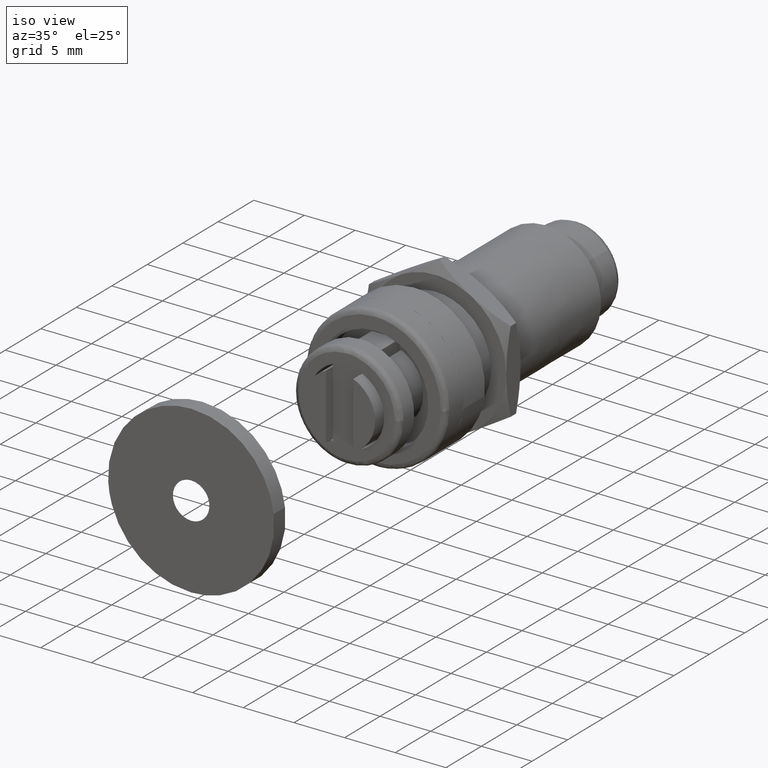
[diagram: clean part render]
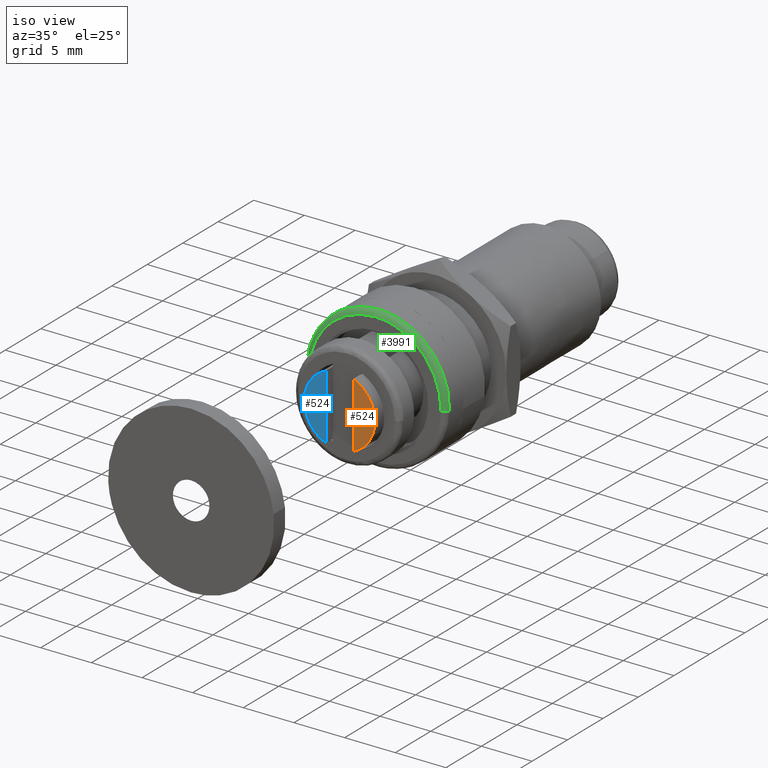
[diagram: same view with three faces highlighted in distinct colors, each labeled with its STEP entity id]
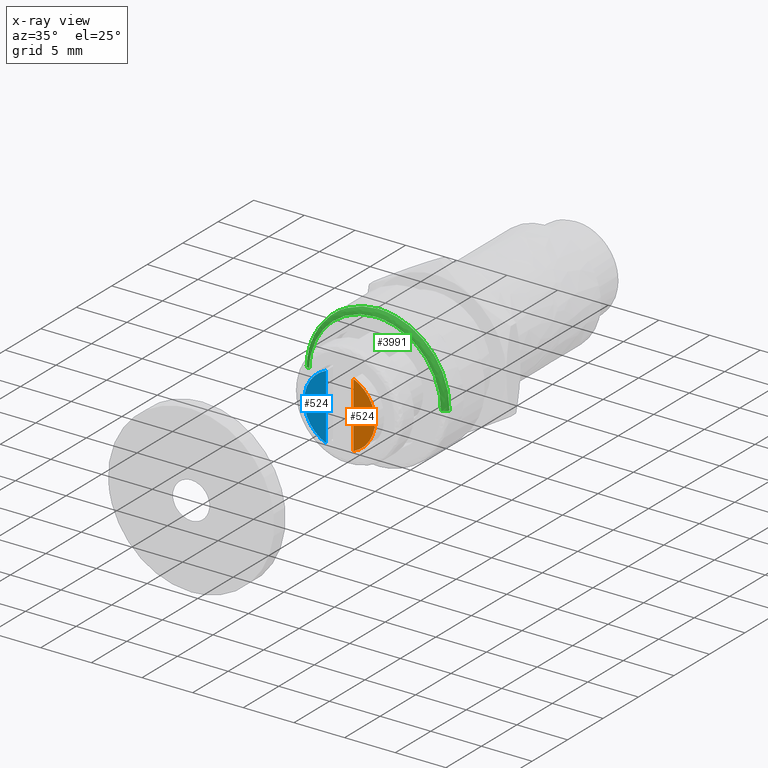
[diagram: x-ray of the same camera — body ghosted, the three highlighted faces saturated]
A machine part, iso view with three faces highlighted in distinct colors.
The next image is the same camera in x-ray (body ghosted, the three faces saturated) — at least one of them is partly hidden behind the body in this view.
Their STEP definitions:

[orange] entity #524 — the highlighted face is a freeform B-spline surface patch.
#493=CARTESIAN_POINT('',(-3.607392352907653,-5.0,3.551756323650161));
#494=CARTESIAN_POINT('',(-1.242610450791008,-5.0,3.551756323650161));
#495=CARTESIAN_POINT('',(-3.607392352907653,-5.0,-3.551756381392092));
#496=CARTESIAN_POINT('',(-1.242610450791008,-5.0,-3.551756381392092));
#497=B_SPLINE_SURFACE_WITH_KNOTS('',1,1,((#493,#495),(#494,#496)),.UNSPECIFIED.,.F.,.F.,.U.,(2,2),(2,2),(0.0,2.364781902116645),(0.0,7.103512705042252),.UNSPECIFIED.);
#498=CARTESIAN_POINT('',(-1.350002707586292,-5.0,3.229162846545475));
#499=VERTEX_POINT('',#498);
#500=CARTESIAN_POINT('',(-1.350002707586292,-5.0,-3.229162846545475));
#501=VERTEX_POINT('',#500);
#502=CARTESIAN_POINT('',(-1.350002707586293,-5.0,3.229162846545476));
#503=CARTESIAN_POINT('',(-3.500000000000000,-5.0,2.330322402754674));
#504=CARTESIAN_POINT('',(-3.500000000000000,-5.0,0.0));
#505=CARTESIAN_POINT('',(-3.500000000000001,-5.0,-2.330322402754674));
#506=CARTESIAN_POINT('',(-1.350002707586292,-5.0,-3.229162846545476));
#514=(BOUNDED_CURVE()B_SPLINE_CURVE(2,(#502,#503,#504,#505,#506),.UNSPECIFIED.,.F.,.U.)B_SPLINE_CURVE_WITH_KNOTS((3,2,3),(0.0,0.500000000000000,1.0),.UNSPECIFIED.)CURVE()GEOMETRIC_REPRESENTATION_ITEM()RATIONAL_B_SPLINE_CURVE((1.0,0.832380639884893,1.0,0.832380639884893,1.0))REPRESENTATION_ITEM(''));
#515=EDGE_CURVE('',#499,#501,#514,.T.);
#516=ORIENTED_EDGE('',*,*,#515,.T.);
#517=CARTESIAN_POINT('',(-1.350002707586292,-5.0,-3.229162846545475));
#518=CARTESIAN_POINT('',(-1.350002707586292,-5.0,3.229162846545475));
#519=QUASI_UNIFORM_CURVE('',1,(#517,#518),.UNSPECIFIED.,.F.,.U.);
#520=EDGE_CURVE('',#501,#499,#519,.T.);
#521=ORIENTED_EDGE('',*,*,#520,.T.);
#522=EDGE_LOOP('',(#516,#521));
#523=FACE_OUTER_BOUND('',#522,.T.);
#524=ADVANCED_FACE('',(#523),#497,.F.);

[blue] entity #524 — the highlighted face is a freeform B-spline surface patch.
#493=CARTESIAN_POINT('',(-3.607392352907653,-5.0,3.551756323650161));
#494=CARTESIAN_POINT('',(-1.242610450791008,-5.0,3.551756323650161));
#495=CARTESIAN_POINT('',(-3.607392352907653,-5.0,-3.551756381392092));
#496=CARTESIAN_POINT('',(-1.242610450791008,-5.0,-3.551756381392092));
#497=B_SPLINE_SURFACE_WITH_KNOTS('',1,1,((#493,#495),(#494,#496)),.UNSPECIFIED.,.F.,.F.,.U.,(2,2),(2,2),(0.0,2.364781902116645),(0.0,7.103512705042252),.UNSPECIFIED.);
#498=CARTESIAN_POINT('',(-1.350002707586292,-5.0,3.229162846545475));
#499=VERTEX_POINT('',#498);
#500=CARTESIAN_POINT('',(-1.350002707586292,-5.0,-3.229162846545475));
#501=VERTEX_POINT('',#500);
#502=CARTESIAN_POINT('',(-1.350002707586293,-5.0,3.229162846545476));
#503=CARTESIAN_POINT('',(-3.500000000000000,-5.0,2.330322402754674));
#504=CARTESIAN_POINT('',(-3.500000000000000,-5.0,0.0));
#505=CARTESIAN_POINT('',(-3.500000000000001,-5.0,-2.330322402754674));
#506=CARTESIAN_POINT('',(-1.350002707586292,-5.0,-3.229162846545476));
#514=(BOUNDED_CURVE()B_SPLINE_CURVE(2,(#502,#503,#504,#505,#506),.UNSPECIFIED.,.F.,.U.)B_SPLINE_CURVE_WITH_KNOTS((3,2,3),(0.0,0.500000000000000,1.0),.UNSPECIFIED.)CURVE()GEOMETRIC_REPRESENTATION_ITEM()RATIONAL_B_SPLINE_CURVE((1.0,0.832380639884893,1.0,0.832380639884893,1.0))REPRESENTATION_ITEM(''));
#515=EDGE_CURVE('',#499,#501,#514,.T.);
#516=ORIENTED_EDGE('',*,*,#515,.T.);
#517=CARTESIAN_POINT('',(-1.350002707586292,-5.0,-3.229162846545475));
#518=CARTESIAN_POINT('',(-1.350002707586292,-5.0,3.229162846545475));
#519=QUASI_UNIFORM_CURVE('',1,(#517,#518),.UNSPECIFIED.,.F.,.U.);
#520=EDGE_CURVE('',#501,#499,#519,.T.);
#521=ORIENTED_EDGE('',*,*,#520,.T.);
#522=EDGE_LOOP('',(#516,#521));
#523=FACE_OUTER_BOUND('',#522,.T.);
#524=ADVANCED_FACE('',(#523),#497,.F.);

[green] entity #3991 — the highlighted face is a freeform B-spline surface patch.
#3697=CARTESIAN_POINT('',(-4.729130744530560,0.499999999838195,5.160942007139392));
#3698=VERTEX_POINT('',#3697);
#3704=CARTESIAN_POINT('',(0.0,0.500000000000000,6.999999999999998));
#3705=VERTEX_POINT('',#3704);
#3706=CARTESIAN_POINT('',(0.0,0.500000000000000,6.999999999999998));
#3707=CARTESIAN_POINT('',(-2.722150016242962,0.500000000000000,6.999999999999997));
#3708=CARTESIAN_POINT('',(-4.729130744530560,0.499999999838195,5.160942007139392));
#3716=(BOUNDED_CURVE()B_SPLINE_CURVE(2,(#3706,#3707,#3708),.UNSPECIFIED.,.F.,.U.)B_SPLINE_CURVE_WITH_KNOTS((3,3),(0.500000000000000,0.618415167619761),.UNSPECIFIED.)CURVE()GEOMETRIC_REPRESENTATION_ITEM()RATIONAL_B_SPLINE_CURVE((1.0,0.861268001598055,0.853959785956036))REPRESENTATION_ITEM(''));
#3717=EDGE_CURVE('',#3705,#3698,#3716,.T.);
#3719=CARTESIAN_POINT('',(6.997789324981641,0.499999999399915,-0.175910668161384));
#3720=VERTEX_POINT('',#3719);
#3721=CARTESIAN_POINT('',(6.997789324981641,0.499999999399915,-0.175910668161384));
#3722=CARTESIAN_POINT('',(7.000000000000001,0.500000000000000,-0.087969224921707));
#3723=CARTESIAN_POINT('',(7.0,0.500000000000000,-1.653219E-015));
#3724=CARTESIAN_POINT('',(6.999999999999999,0.500000000000000,6.999999999999996));
#3725=CARTESIAN_POINT('',(0.0,0.500000000000000,6.999999999999998));
#3733=(BOUNDED_CURVE()B_SPLINE_CURVE(2,(#3721,#3722,#3723,#3724,#3725),.UNSPECIFIED.,.F.,.U.)B_SPLINE_CURVE_WITH_KNOTS((3,2,3),(0.245579891766906,0.250000000000000,0.500000000000000),.UNSPECIFIED.)CURVE()GEOMETRIC_REPRESENTATION_ITEM()RATIONAL_B_SPLINE_CURVE((0.989826157675018,0.994821521088421,1.0,0.707106781186547,1.0))REPRESENTATION_ITEM(''));
#3734=EDGE_CURVE('',#3720,#3705,#3733,.T.);
#3808=CARTESIAN_POINT('',(-6.997789324981640,0.499999999399915,0.175910668161380));
#3809=VERTEX_POINT('',#3808);
#3825=CARTESIAN_POINT('',(-4.729130744530560,0.499999999838195,5.160942007139392));
#3826=CARTESIAN_POINT('',(-6.923010921446320,0.499999999661500,3.150622317518245));
#3827=CARTESIAN_POINT('',(-6.997789324981640,0.499999999399915,0.175910668161380));
#3835=(BOUNDED_CURVE()B_SPLINE_CURVE(2,(#3825,#3826,#3827),.UNSPECIFIED.,.F.,.U.)B_SPLINE_CURVE_WITH_KNOTS((3,3),(0.618415167619761,0.745579891766905),.UNSPECIFIED.)CURVE()GEOMETRIC_REPRESENTATION_ITEM()RATIONAL_B_SPLINE_CURVE((0.853959785956036,0.846111574913432,0.989826157675016))REPRESENTATION_ITEM(''));
#3836=EDGE_CURVE('',#3698,#3809,#3835,.T.);
#3868=CARTESIAN_POINT('',(6.497947238970514,2.342874E-016,-0.163345620926718));
#3869=VERTEX_POINT('',#3868);
#3870=CARTESIAN_POINT('',(6.997789324981642,0.499999999399915,-0.175910668161384));
#3871=CARTESIAN_POINT('',(6.997789323783309,0.000000017280071,-0.175910668073203));
#3872=CARTESIAN_POINT('',(6.497947238970514,2.342874E-016,-0.163345620926718));
#3880=(BOUNDED_CURVE()B_SPLINE_CURVE(2,(#3870,#3871,#3872),.UNSPECIFIED.,.F.,.U.)B_SPLINE_CURVE_WITH_KNOTS((3,3),(-1.723441279513403,-0.263586914696300),.UNSPECIFIED.)CURVE()GEOMETRIC_REPRESENTATION_ITEM()RATIONAL_B_SPLINE_CURVE((0.883897566267645,0.626638733984059,0.888510396230107))REPRESENTATION_ITEM(''));
#3881=EDGE_CURVE('',#3720,#3869,#3880,.T.);
#3898=CARTESIAN_POINT('',(-6.497947238970513,2.342874E-016,0.163345620926717));
#3899=VERTEX_POINT('',#3898);
#3915=CARTESIAN_POINT('',(-6.997789324981641,0.499999999399915,0.175910668161380));
#3916=CARTESIAN_POINT('',(-6.997789323783307,0.000000017280071,0.175910668073201));
#3917=CARTESIAN_POINT('',(-6.497947238970513,2.342874E-016,0.163345620926717));
#3925=(BOUNDED_CURVE()B_SPLINE_CURVE(2,(#3915,#3916,#3917),.UNSPECIFIED.,.F.,.U.)B_SPLINE_CURVE_WITH_KNOTS((3,3),(-1.723441279513404,-0.263586914696299),.UNSPECIFIED.)CURVE()GEOMETRIC_REPRESENTATION_ITEM()RATIONAL_B_SPLINE_CURVE((0.883897566267645,0.626638733984058,0.888510396230107))REPRESENTATION_ITEM(''));
#3926=EDGE_CURVE('',#3809,#3899,#3925,.T.);
#3931=CARTESIAN_POINT('',(6.996572862937225,0.534862094371600,-0.175880088638725));
#3932=CARTESIAN_POINT('',(7.172452951575946,0.534862094371600,6.820692774298498));
#3933=CARTESIAN_POINT('',(0.175880088638724,0.534862094371600,6.996572862937224));
#3934=CARTESIAN_POINT('',(-6.820692774298500,0.534862094371600,7.172452951575946));
#3935=CARTESIAN_POINT('',(-6.996572862937225,0.534862094371600,0.175880088638722));
#3936=CARTESIAN_POINT('',(7.036646674361939,-0.038667891869383,-0.176887465485010));
#3937=CARTESIAN_POINT('',(7.213534139846947,-0.038667891869383,6.859759208876928));
#3938=CARTESIAN_POINT('',(0.176887465485009,-0.038667891869383,7.036646674361936));
#3939=CARTESIAN_POINT('',(-6.859759208876930,-0.038667891869383,7.213534139846947));
#3940=CARTESIAN_POINT('',(-7.036646674361939,-0.038667891869383,0.176887465485008));
#3941=CARTESIAN_POINT('',(6.463282850260654,0.001203827775858,-0.162474226006098));
#3942=CARTESIAN_POINT('',(6.625757076266750,0.001203827775858,6.300808624254554));
#3943=CARTESIAN_POINT('',(0.162474226006097,0.001203827775858,6.463282850260653));
#3944=CARTESIAN_POINT('',(-6.300808624254557,0.001203827775858,6.625757076266750));
#3945=CARTESIAN_POINT('',(-6.463282850260654,0.001203827775858,0.162474226006095));
#3953=(BOUNDED_SURFACE()B_SPLINE_SURFACE(2,2,((#3931,#3936,#3941),(#3932,#3937,#3942),(#3933,#3938,#3943),(#3934,#3939,#3944),(#3935,#3940,#3945)),.UNSPECIFIED.,.F.,.F.,.U.)B_SPLINE_SURFACE_WITH_KNOTS((3,2,3),(3,3),(0.0,11.595963609418931,23.191927218837851),(0.0,0.911185218230686),.UNSPECIFIED.)GEOMETRIC_REPRESENTATION_ITEM()RATIONAL_B_SPLINE_SURFACE(((0.910892943119429,0.599412915015239,0.915966658337646),(0.644098577014720,0.423848936938071,0.647686235451331),(0.910892943119429,0.599412915015239,0.915966658337646),(0.644098577014720,0.423848936938071,0.647686235451331),(0.910892943119429,0.599412915015239,0.915966658337646)))REPRESENTATION_ITEM('')SURFACE());
#3954=ORIENTED_EDGE('',*,*,#3717,.T.);
#3955=ORIENTED_EDGE('',*,*,#3836,.T.);
#3956=ORIENTED_EDGE('',*,*,#3926,.T.);
#3957=CARTESIAN_POINT('',(0.0,0.0,6.499999999999998));
#3958=VERTEX_POINT('',#3957);
#3959=CARTESIAN_POINT('',(0.0,0.0,6.499999999999998));
#3960=CARTESIAN_POINT('',(-6.338656194534290,0.0,6.499999999999998));
#3961=CARTESIAN_POINT('',(-6.497947238970513,2.342874E-016,0.163345620926717));
#3969=(BOUNDED_CURVE()B_SPLINE_CURVE(2,(#3959,#3960,#3961),.UNSPECIFIED.,.F.,.U.)B_SPLINE_CURVE_WITH_KNOTS((3,3),(0.500000000000000,0.745579891752148),.UNSPECIFIED.)CURVE()GEOMETRIC_REPRESENTATION_ITEM()RATIONAL_B_SPLINE_CURVE((1.0,0.712285260115417,0.989826157641660))REPRESENTATION_ITEM(''));
#3970=EDGE_CURVE('',#3958,#3899,#3969,.T.);
#3971=ORIENTED_EDGE('',*,*,#3970,.F.);
#3972=CARTESIAN_POINT('',(6.497947238970514,2.342874E-016,-0.163345620926718));
#3973=CARTESIAN_POINT('',(6.500000000000000,0.0,-0.081685709130022));
#3974=CARTESIAN_POINT('',(6.500000000000000,0.0,-1.653219E-015));
#3975=CARTESIAN_POINT('',(6.500000000000000,0.0,6.499999999999998));
#3976=CARTESIAN_POINT('',(0.0,0.0,6.499999999999998));
#3984=(BOUNDED_CURVE()B_SPLINE_CURVE(2,(#3972,#3973,#3974,#3975,#3976),.UNSPECIFIED.,.F.,.U.)B_SPLINE_CURVE_WITH_KNOTS((3,2,3),(0.245579891752148,0.250000000000000,0.500000000000000),.UNSPECIFIED.)CURVE()GEOMETRIC_REPRESENTATION_ITEM()RATIONAL_B_SPLINE_CURVE((0.989826157641661,0.994821521071131,1.0,0.707106781186547,1.0))REPRESENTATION_ITEM(''));
#3985=EDGE_CURVE('',#3869,#3958,#3984,.T.);
#3986=ORIENTED_EDGE('',*,*,#3985,.F.);
#3987=ORIENTED_EDGE('',*,*,#3881,.F.);
#3988=ORIENTED_EDGE('',*,*,#3734,.T.);
#3989=EDGE_LOOP('',(#3954,#3955,#3956,#3971,#3986,#3987,#3988));
#3990=FACE_OUTER_BOUND('',#3989,.T.);
#3991=ADVANCED_FACE('',(#3990),#3953,.T.);